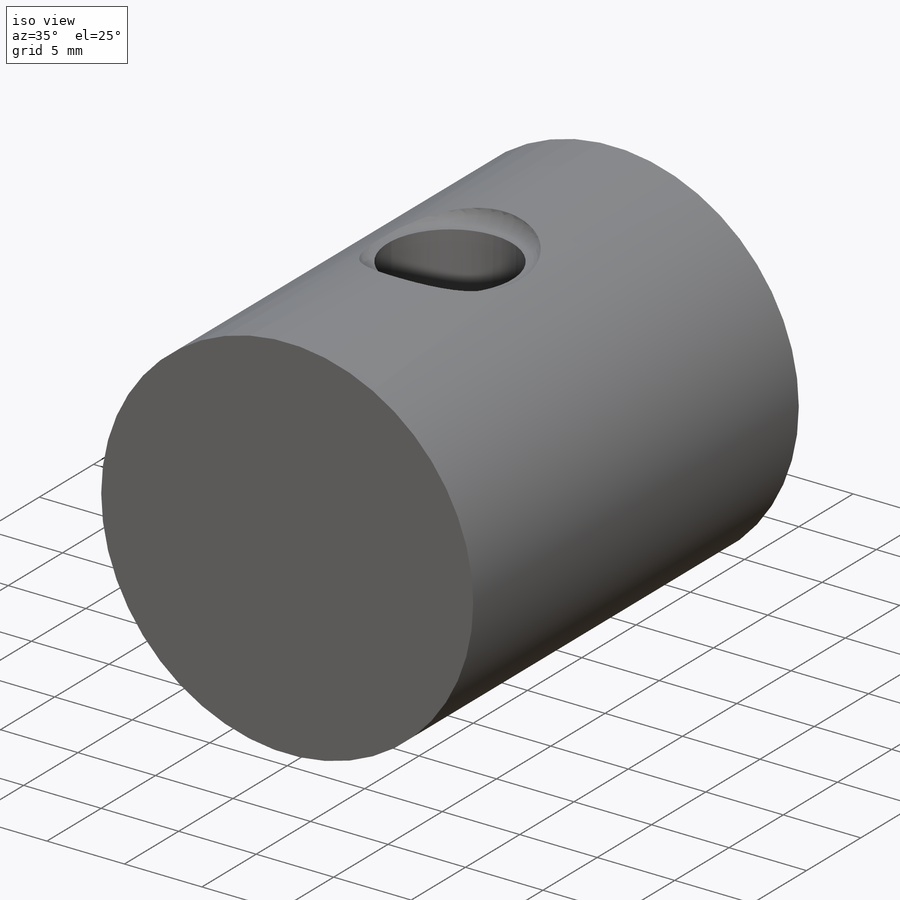
[diagram: iso view]
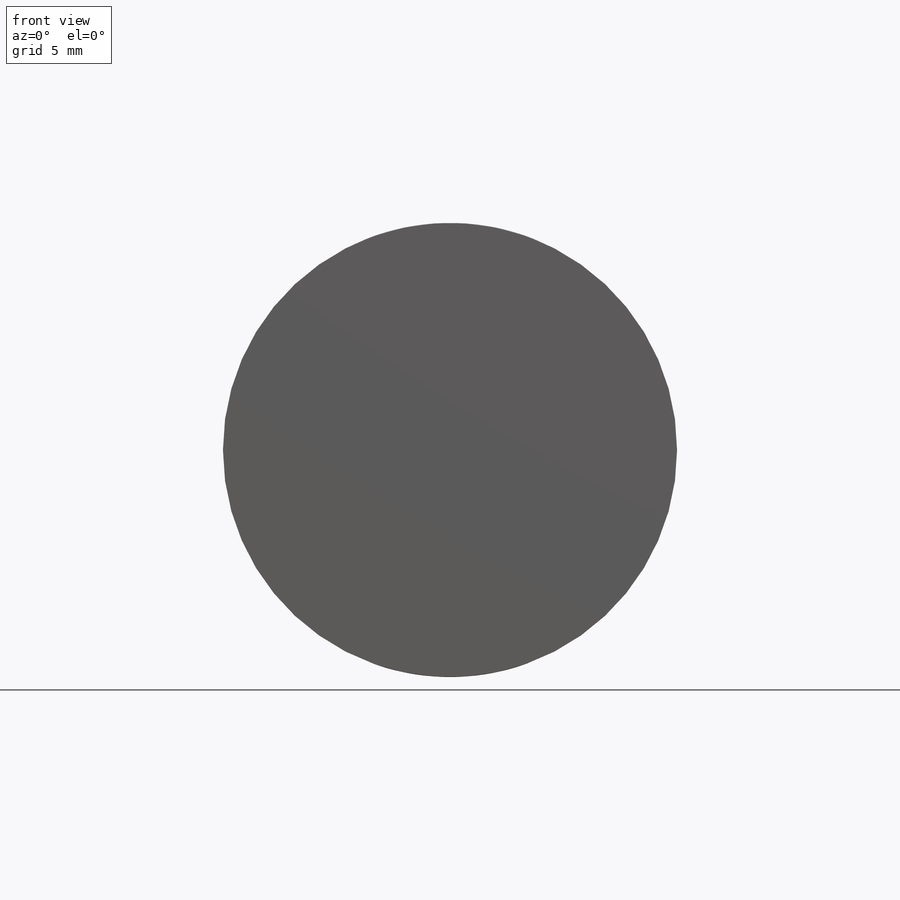
[diagram: front view]
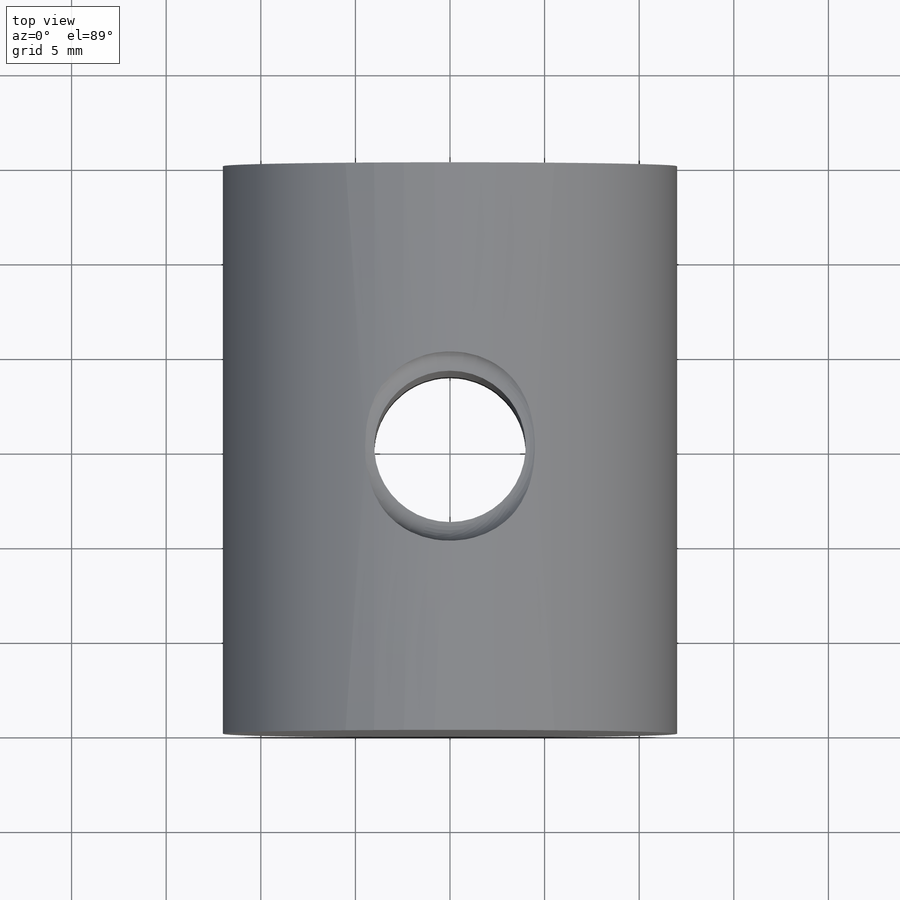
[diagram: top view]
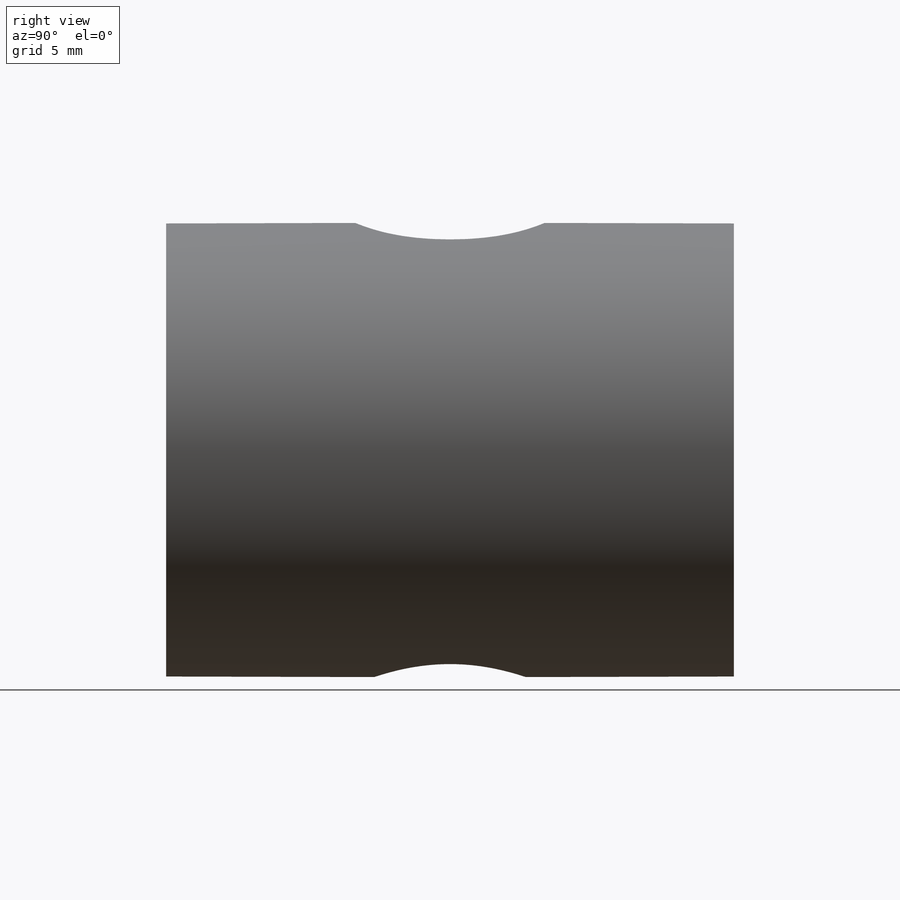
[diagram: right view]
SOLIDWORKS PART (.sldprt)
format: sldprt  version: not decoded by parser v0  size: 167,424 bytes
history: native  units: mm
features: sketch x5, plane x4, hole x2, material x1, extrude x1, cut_revolve x1 (+10 scaffold rows collapsed)
feature tree (24):
  scaffold x10  (default folders/planes/origin — collapsed)
  material  "Materiał <nieokreślony>"
  plane  "Płaszczyzna przednia"
  plane  "Płaszczyzna górna"
  plane  "Płaszczyzna prawa"
  sketch  "Szkic1"  dims[D1=~12.024554mm]
  extrude  "Dodanie-wyciągnięcie1"  Depth=30mm
  plane  "Płaszczyzna1"
  sketch  "Szkic2"
  hole  "Otwór Ø8.0 (8)1"  [1 undecoded]
  sketch  "Szkic4"
  sketch  "Szkic3"  dims[hole-wizard template sketch: 59 standard entries collapsed; hole parameters kept: c18.Średnica otworu na wylot=8.0mm c18.Głębokość otworu na wylot=24.0mm]
  sketch  "Szkic5"  dims[D1=~0.235286mm]
  hole  "Oś2"  [1 undecoded]
  cut_revolve  "Wycięcie-obrót1"  Angle=360deg
decode coverage: 5 of 9 modeling features carry decoded parameters
note: ~ marks probable driven/reference dimensions
note: 2 parameter values undecoded
note: suppression state not decoded; provenance and decode notes live in map.json
